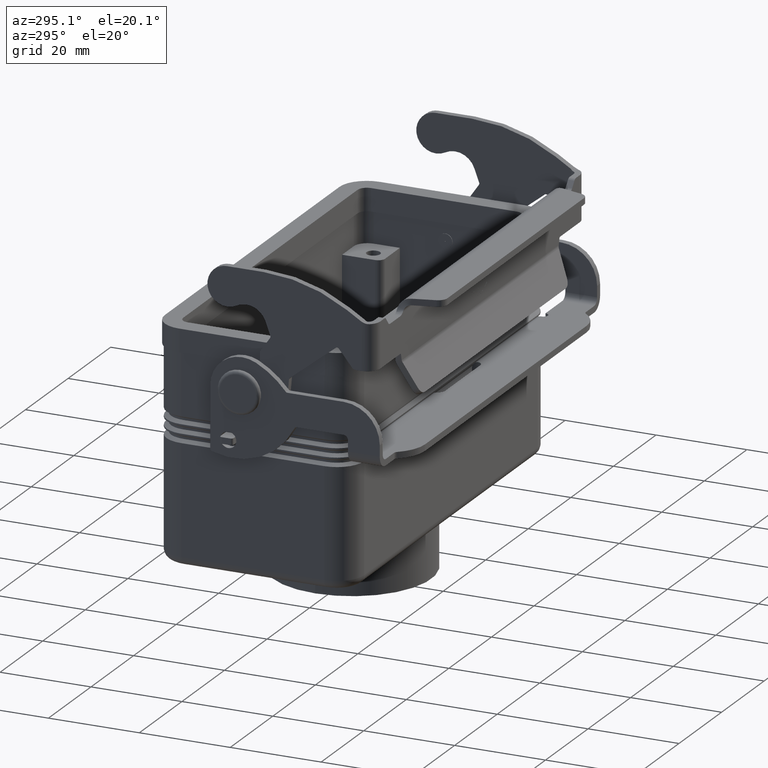
[diagram: clean part render]
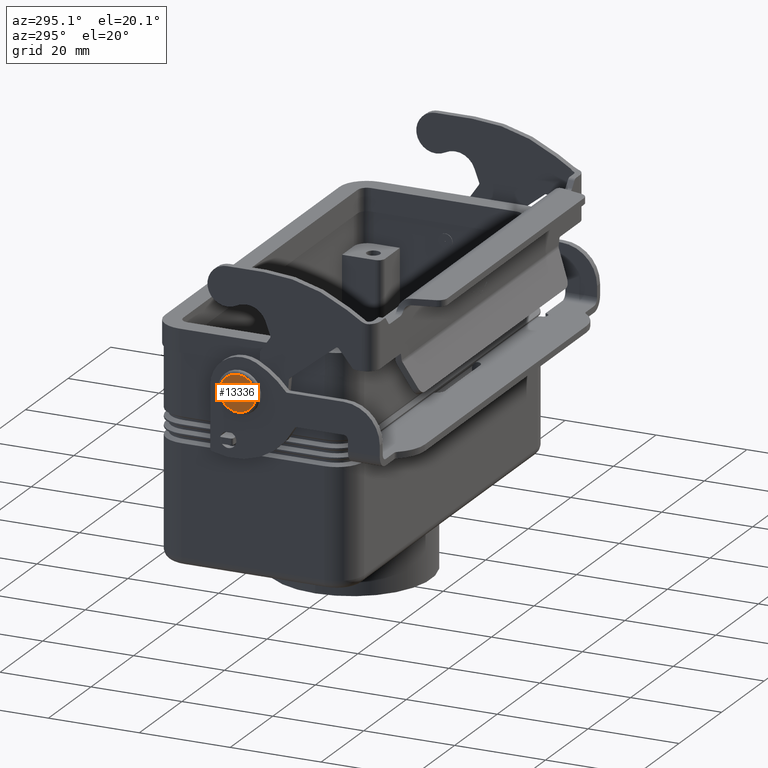
[diagram: same view with one face highlighted and labeled with its STEP entity id]
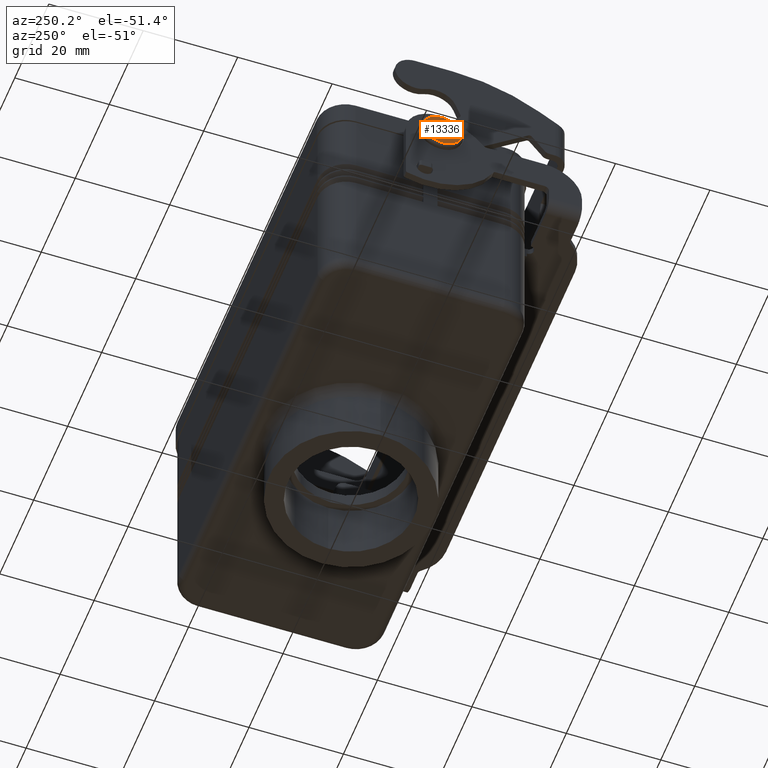
[diagram: same view with one face highlighted and labeled with its STEP entity id]
A machine part, auxiliary view. The second image highlights one B-rep face of the part: STEP entity #13336.
A second angle (auxiliary view) of the same face is appended — the face is thin or edge-on in the first view.
In plain terms, the highlighted planar face has unit normal (-1, 0, 0).
Its self-contained STEP definition (entity closure, byte-faithful):
#8648=CARTESIAN_POINT('',(-53.750000000000000,4.898425E-016,-3.999999999999970));
#8649=VERTEX_POINT('',#8648);
#8657=CARTESIAN_POINT('',(-53.750000000000000,0.0,4.000000000000039));
#8658=VERTEX_POINT('',#8657);
#8659=CARTESIAN_POINT('',(-53.750000000000000,0.0,3.438853E-014));
#8660=DIRECTION('',(-1.0,0.0,0.0));
#8661=DIRECTION('',(0.0,0.0,1.0));
#8662=AXIS2_PLACEMENT_3D('',#8659,#8660,#8661);
#8663=CIRCLE('',#8662,4.000000000000004);
#8664=EDGE_CURVE('',#8658,#8649,#8663,.T.);
#13316=CARTESIAN_POINT('',(-53.750000000000000,0.0,3.438853E-014));
#13317=DIRECTION('',(-1.0,0.0,0.0));
#13318=DIRECTION('',(0.0,0.0,1.0));
#13319=AXIS2_PLACEMENT_3D('',#13316,#13317,#13318);
#13320=CIRCLE('',#13319,4.000000000000004);
#13321=EDGE_CURVE('',#8649,#8658,#13320,.T.);
#13327=CARTESIAN_POINT('',(-53.750000000000000,0.0,2.000000000000037));
#13328=DIRECTION('',(-1.0,0.0,0.0));
#13329=DIRECTION('',(0.0,0.0,1.0));
#13330=AXIS2_PLACEMENT_3D('',#13327,#13328,#13329);
#13331=PLANE('',#13330);
#13332=ORIENTED_EDGE('',*,*,#8664,.T.);
#13333=ORIENTED_EDGE('',*,*,#13321,.T.);
#13334=EDGE_LOOP('',(#13332,#13333));
#13335=FACE_OUTER_BOUND('',#13334,.T.);
#13336=ADVANCED_FACE('',(#13335),#13331,.T.);